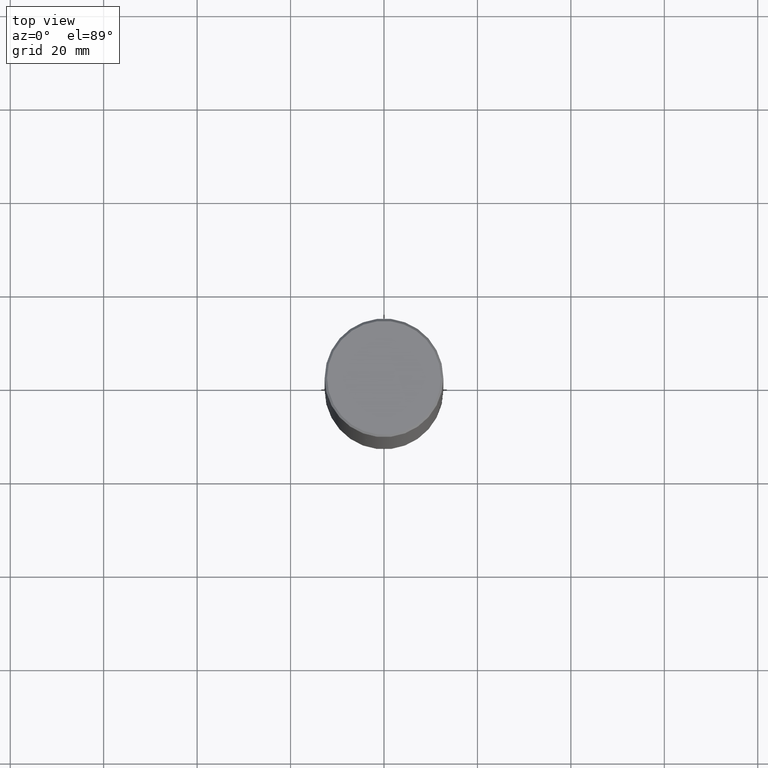
[diagram: clean part render]
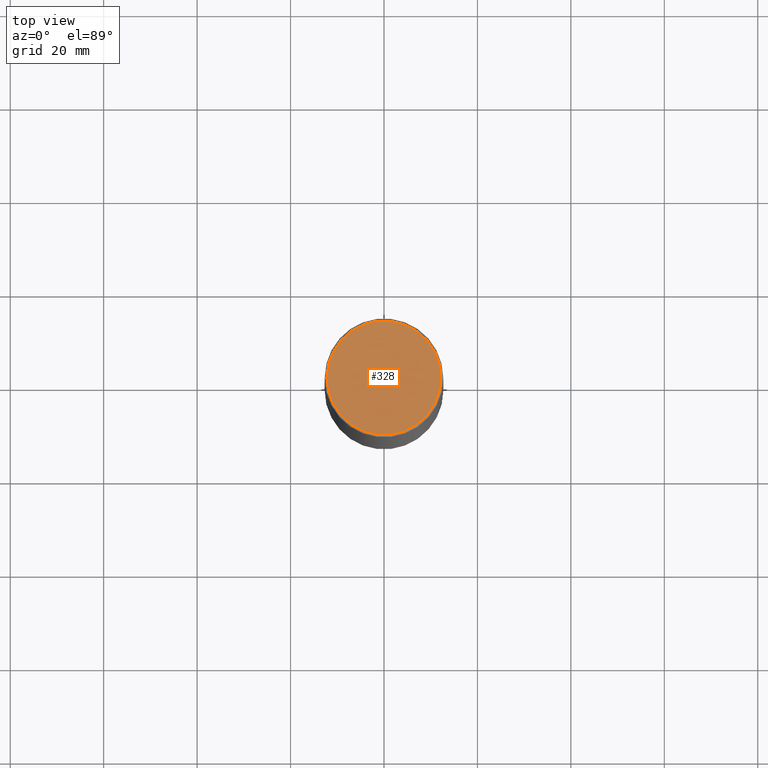
[diagram: same view with one face highlighted and labeled with its STEP entity id]
A machine part, top view. The second image highlights one B-rep face of the part: STEP entity #328.
In plain terms, the highlighted planar face has unit normal (0, -0, -1).
Its self-contained STEP definition (entity closure, byte-faithful):
#5 = FACE_OUTER_BOUND ( 'NONE', #98, .T. ) ;
#70 = DIRECTION ( 'NONE',  ( 1.000000000000000000, -6.982962677686267499E-15, 4.876431871984425487E-29 ) ) ;
#71 = CARTESIAN_POINT ( 'NONE',  ( 0.4799999999999988165, -3.396558832296475394E-15, 1.707404996042524007E-17 ) ) ;
#98 = EDGE_LOOP ( 'NONE', ( #119, #231 ) ) ;
#108 = CIRCLE ( 'NONE', #478, 0.4799999999999988165 ) ;
#119 = ORIENTED_EDGE ( 'NONE', *, *, #164, .T. ) ;
#124 = EDGE_CURVE ( 'NONE', #199, #167, #108, .T. ) ;
#163 = DIRECTION ( 'NONE',  ( 2.438088387897960049E-29, -3.491481338843145188E-15, -1.000000000000000000 ) ) ;
#164 = EDGE_CURVE ( 'NONE', #167, #199, #285, .T. ) ;
#167 = VERTEX_POINT ( 'NONE', #196 ) ;
#196 = CARTESIAN_POINT ( 'NONE',  ( -0.4799999999999988165, 3.386736898677831703E-15, 1.707404996037808406E-17 ) ) ;
#199 = VERTEX_POINT ( 'NONE', #71 ) ;
#231 = ORIENTED_EDGE ( 'NONE', *, *, #124, .T. ) ;
#233 = CARTESIAN_POINT ( 'NONE',  ( 3.351822085289399659E-15, 0.4799999999999988165, -1.667374017664504893E-15 ) ) ;
#259 = CARTESIAN_POINT ( 'NONE',  ( -4.175405657340879278E-46, 5.961372681521788801E-32, 1.707404996040164512E-17 ) ) ;
#285 = CIRCLE ( 'NONE', #336, 0.4799999999999988165 ) ;
#290 = AXIS2_PLACEMENT_3D ( 'NONE', #233, #163, #414 ) ;
#302 = DIRECTION ( 'NONE',  ( -2.445468806185136597E-29, 3.491481338843145583E-15, 1.000000000000000000 ) ) ;
#320 = PLANE ( 'NONE',  #290 ) ;
#328 = ADVANCED_FACE ( 'NONE', ( #5 ), #320, .F. ) ;
#336 = AXIS2_PLACEMENT_3D ( 'NONE', #405, #302, #70 ) ;
#405 = CARTESIAN_POINT ( 'NONE',  ( -4.175405657340879278E-46, 5.961372681521788801E-32, 1.707404996040164512E-17 ) ) ;
#414 = DIRECTION ( 'NONE',  ( -1.000000000000000000, 6.982962677686265922E-15, -4.876176775795935793E-29 ) ) ;
#441 = DIRECTION ( 'NONE',  ( -2.445468806185136597E-29, 3.491481338843145583E-15, 1.000000000000000000 ) ) ;
#449 = DIRECTION ( 'NONE',  ( 1.000000000000000000, -6.982962677686267499E-15, 4.876431871984425487E-29 ) ) ;
#478 = AXIS2_PLACEMENT_3D ( 'NONE', #259, #441, #449 ) ;